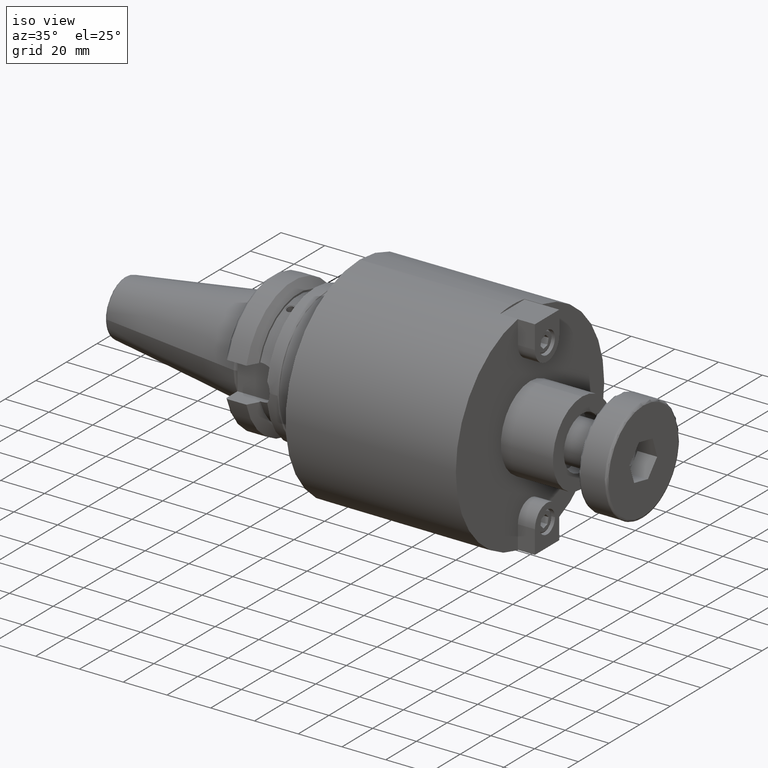
[diagram: clean part render]
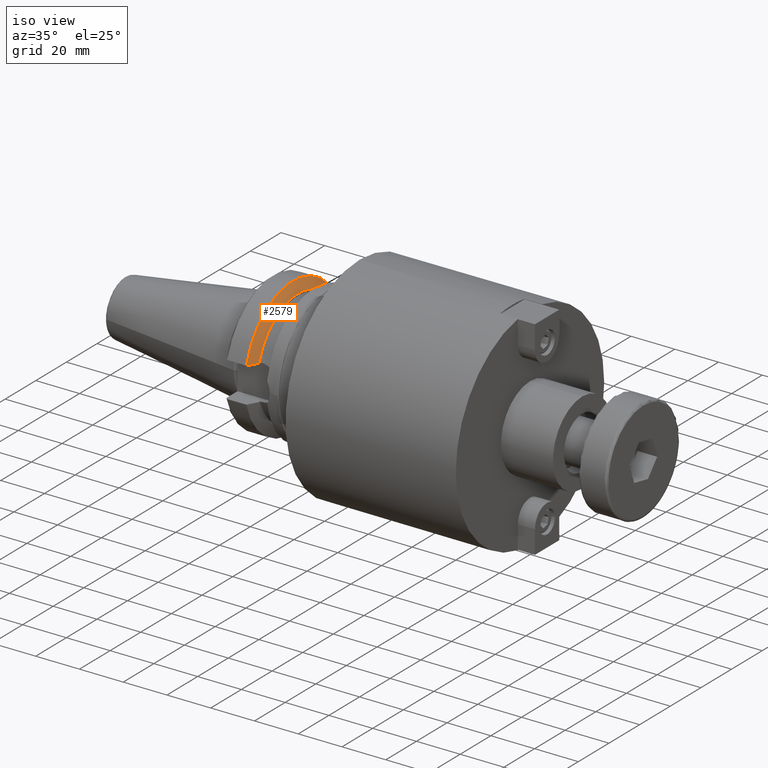
[diagram: same view with one face highlighted and labeled with its STEP entity id]
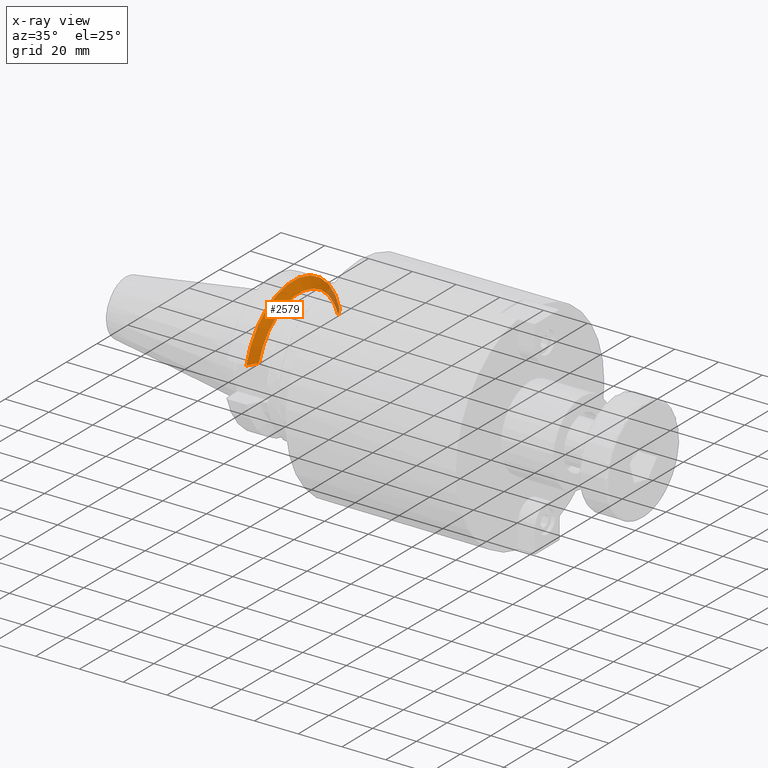
[diagram: x-ray of the same camera — body ghosted, the highlighted face saturated]
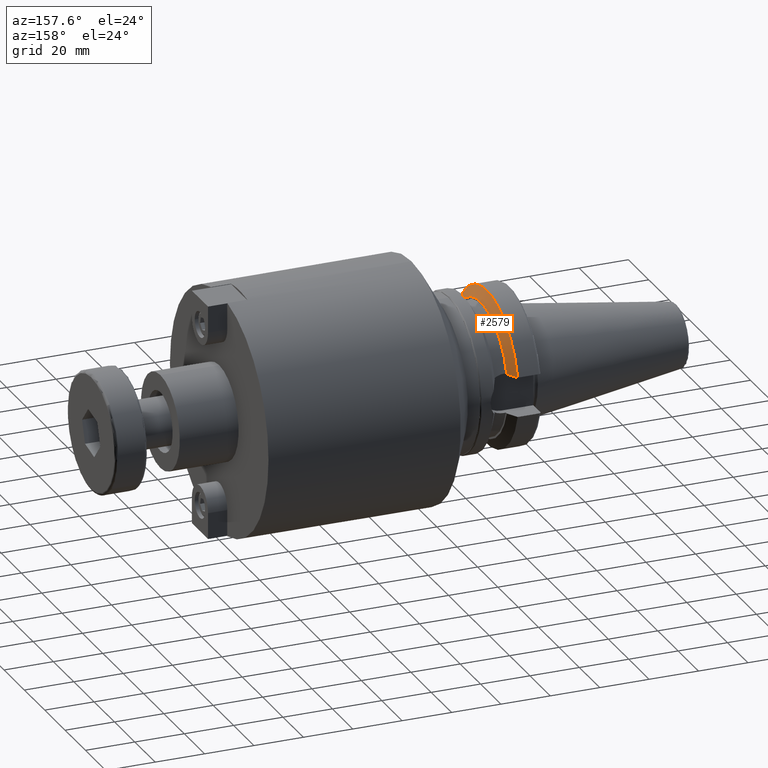
[diagram: same view with one face highlighted and labeled with its STEP entity id]
A machine part, iso view. The second image highlights one B-rep face of the part: STEP entity #2579.
The next image is the same camera in x-ray: the body ghosted, the highlighted face saturated — about 7% of this face is hidden behind the body in this view.
A second angle (auxiliary view) of the same face is appended — the face is thin or edge-on in the first view.
In plain terms, the highlighted conical surface has half-angle 60.125 deg.
Its self-contained STEP definition (entity closure, byte-faithful):
#486=(
BOUNDED_CURVE()
B_SPLINE_CURVE(2,(#4353,#4354,#4355),.UNSPECIFIED.,.F.,.F.)
B_SPLINE_CURVE_WITH_KNOTS((3,3),(0.,0.523582790832811),.UNSPECIFIED.)
CURVE()
GEOMETRIC_REPRESENTATION_ITEM()
RATIONAL_B_SPLINE_CURVE((1.,1.00307360097463,1.))
REPRESENTATION_ITEM('')
);
#489=(
BOUNDED_CURVE()
B_SPLINE_CURVE(2,(#4513,#4514,#4515),.UNSPECIFIED.,.F.,.F.)
B_SPLINE_CURVE_WITH_KNOTS((3,3),(0.,0.523582790832811),.UNSPECIFIED.)
CURVE()
GEOMETRIC_REPRESENTATION_ITEM()
RATIONAL_B_SPLINE_CURVE((1.,1.00307360097463,1.))
REPRESENTATION_ITEM('')
);
#677=CIRCLE('',#2945,31.5000000000001);
#678=CIRCLE('',#2947,27.0940716549138);
#762=CONICAL_SURFACE('',#2946,29.2970358274569,1.0493792127616);
#836=FACE_OUTER_BOUND('',#979,.T.);
#979=EDGE_LOOP('',(#2189,#2190,#2191,#2192));
#1402=VERTEX_POINT('',#4350);
#1403=VERTEX_POINT('',#4352);
#1434=VERTEX_POINT('',#4510);
#1435=VERTEX_POINT('',#4512);
#1641=EDGE_CURVE('',#1403,#1402,#486,.T.);
#1686=EDGE_CURVE('',#1435,#1434,#489,.T.);
#1711=EDGE_CURVE('',#1434,#1403,#677,.T.);
#1712=EDGE_CURVE('',#1435,#1402,#678,.T.);
#2189=ORIENTED_EDGE('',*,*,#1641,.T.);
#2190=ORIENTED_EDGE('',*,*,#1712,.F.);
#2191=ORIENTED_EDGE('',*,*,#1686,.T.);
#2192=ORIENTED_EDGE('',*,*,#1711,.T.);
#2579=ADVANCED_FACE('',(#836),#762,.T.);
#2945=AXIS2_PLACEMENT_3D('',#4565,#3512,#3513);
#2946=AXIS2_PLACEMENT_3D('',#4566,#3514,#3515);
#2947=AXIS2_PLACEMENT_3D('',#4567,#3516,#3517);
#3512=DIRECTION('center_axis',(1.,0.,0.));
#3513=DIRECTION('ref_axis',(0.,0.,-1.));
#3514=DIRECTION('center_axis',(-1.,0.,0.));
#3515=DIRECTION('ref_axis',(0.,1.,0.));
#3516=DIRECTION('center_axis',(1.,0.,0.));
#3517=DIRECTION('ref_axis',(0.,0.,-1.));
#4350=CARTESIAN_POINT('',(14.1,-25.8705666509569,8.05));
#4352=CARTESIAN_POINT('',(11.5690363073382,-30.4540227227866,8.05));
#4353=CARTESIAN_POINT('Ctrl Pts',(11.5690363073382,-30.4540227227866,8.05));
#4354=CARTESIAN_POINT('Ctrl Pts',(12.9374976962853,-27.9899702651963,8.05));
#4355=CARTESIAN_POINT('Ctrl Pts',(14.1,-25.8705666509569,8.05));
#4510=CARTESIAN_POINT('',(11.5690363073382,30.4540227227866,8.05));
#4512=CARTESIAN_POINT('',(14.1,25.8705666509569,8.05));
#4513=CARTESIAN_POINT('Ctrl Pts',(14.1,25.8705666509569,8.05));
#4514=CARTESIAN_POINT('Ctrl Pts',(12.9374976962853,27.9899702651963,8.05));
#4515=CARTESIAN_POINT('Ctrl Pts',(11.5690363073382,30.4540227227866,8.05));
#4565=CARTESIAN_POINT('Origin',(11.5690363073382,0.,0.));
#4566=CARTESIAN_POINT('Origin',(12.8345181536691,0.,0.));
#4567=CARTESIAN_POINT('Origin',(14.1,0.,0.));